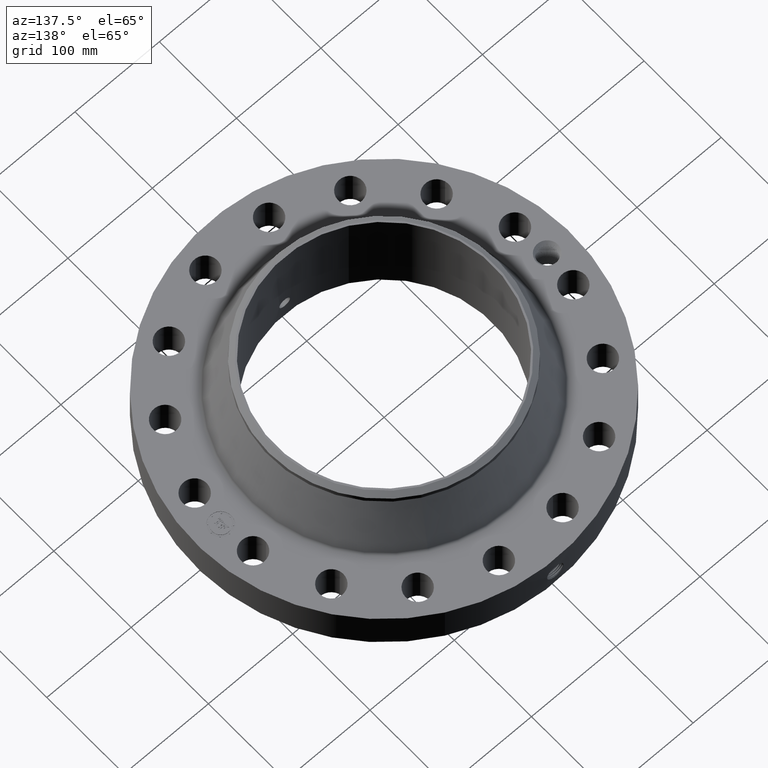
[diagram: clean part render]
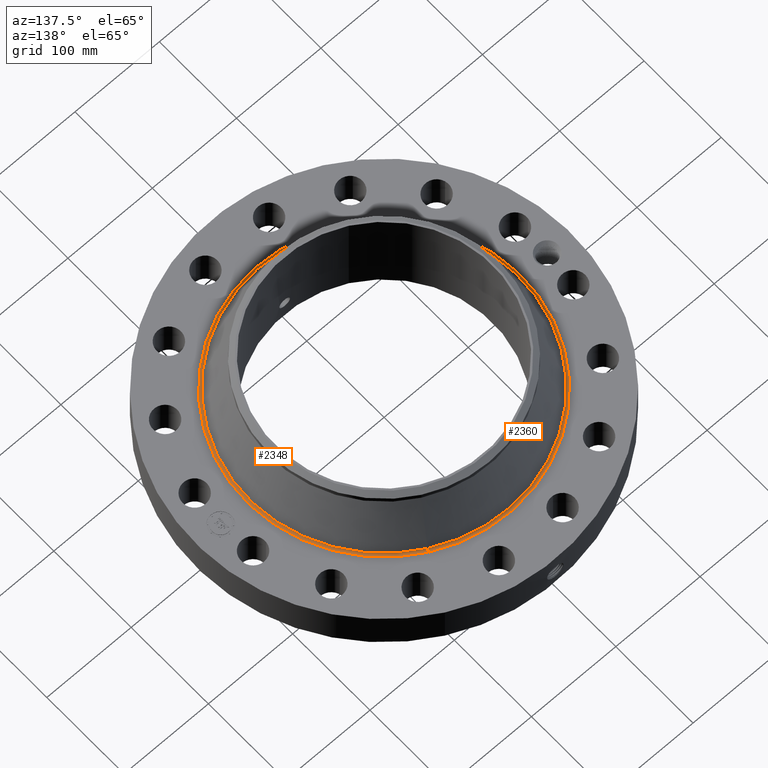
[diagram: same view with one multi-face feature highlighted, each face labeled with its STEP entity id]
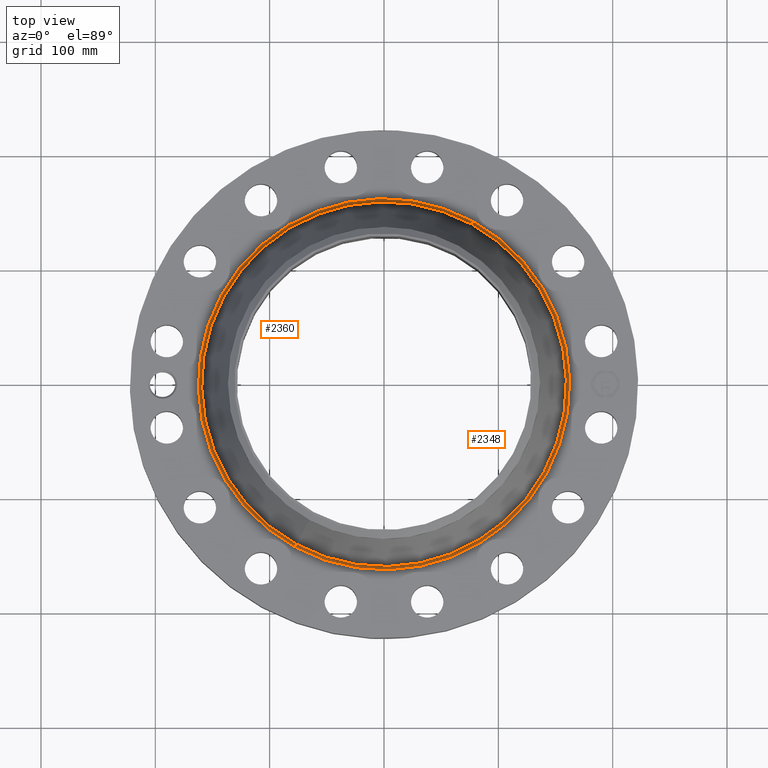
[diagram: same view with one multi-face feature highlighted, each face labeled with its STEP entity id]
A machine part, auxiliary view. The highlighted faces form ONE feature: a constant-radius fillet chain: 2 tangent blend faces with common blend radius 3.048 mm. The faces share edges in the B-rep.
A second angle (top view) of the same feature is appended — it is thin or edge-on in the first view.
Their STEP definitions:
[1] entity #2360 (Torus):
#707=AXIS2_PLACEMENT_3D('Circle Axis2P3D',#705,#706,$) ;
#2321=AXIS2_PLACEMENT_3D('Torus Axis2P3D',#2318,#2319,#2320) ;
#2325=AXIS2_PLACEMENT_3D('Circle Axis2P3D',#2323,#2324,$) ;
#2339=AXIS2_PLACEMENT_3D('Circle Axis2P3D',#2337,#2338,$) ;
#2351=AXIS2_PLACEMENT_3D('Circle Axis2P3D',#2349,#2350,$) ;
#705=CARTESIAN_POINT('Axis2P3D Location',(0.,0.,1.94000000001)) ;
#709=CARTESIAN_POINT('Vertex',(-3.06407052467,-5.60874347386,1.94000000001)) ;
#711=CARTESIAN_POINT('Vertex',(3.06407052467,5.60874347386,1.94000000001)) ;
#2318=CARTESIAN_POINT('Axis2P3D Location',(0.,0.,2.06000000001)) ;
#2323=CARTESIAN_POINT('Axis2P3D Location',(3.06407052467,5.60874347386,2.06000000001)) ;
#2327=CARTESIAN_POINT('Vertex',(3.01068236931,5.51101711099,2.01528688262)) ;
#2334=CARTESIAN_POINT('Vertex',(-3.01068236931,-5.51101711099,2.01528688262)) ;
#2337=CARTESIAN_POINT('Axis2P3D Location',(-3.06407052467,-5.60874347386,2.06000000001)) ;
#2349=CARTESIAN_POINT('Axis2P3D Location',(0.,0.,2.01528688262)) ;
#706=DIRECTION('Axis2P3D Direction',(0.,0.,-0.0393700787402)) ;
#2319=DIRECTION('Axis2P3D Direction',(0.,0.,-0.0393700787402)) ;
#2320=DIRECTION('Axis2P3D XDirection',(-0.0188750212049,-0.0345504945626,0.)) ;
#2324=DIRECTION('Axis2P3D Direction',(-0.0345504945626,0.0188750212049,0.)) ;
#2338=DIRECTION('Axis2P3D Direction',(0.0345504945626,-0.0188750212049,0.)) ;
#2350=DIRECTION('Axis2P3D Direction',(0.,0.,-0.0393700787402)) ;
#2355=ORIENTED_EDGE('',*,*,#713,.F.) ;
#2356=ORIENTED_EDGE('',*,*,#2341,.T.) ;
#2357=ORIENTED_EDGE('',*,*,#2353,.T.) ;
#2358=ORIENTED_EDGE('',*,*,#2329,.F.) ;
#2360=ADVANCED_FACE('PartBody',(#2359),#2322,.F.) ;
#708=CIRCLE('generated circle',#707,6.39112912839) ;
#2326=CIRCLE('generated circle',#2325,0.12) ;
#2340=CIRCLE('generated circle',#2339,0.12) ;
#2352=CIRCLE('generated circle',#2351,6.27977053136) ;
#2322=TOROIDAL_SURFACE('homeo Torus',#2321,6.39112912839,0.12) ;
#713=EDGE_CURVE('',#710,#712,#708,.T.) ;
#2329=EDGE_CURVE('',#712,#2328,#2326,.T.) ;
#2341=EDGE_CURVE('',#710,#2335,#2340,.T.) ;
#2353=EDGE_CURVE('',#2335,#2328,#2352,.T.) ;
#2354=EDGE_LOOP('',(#2355,#2356,#2357,#2358)) ;
#2359=FACE_OUTER_BOUND('',#2354,.T.) ;
#710=VERTEX_POINT('',#709) ;
#712=VERTEX_POINT('',#711) ;
#2328=VERTEX_POINT('',#2327) ;
#2335=VERTEX_POINT('',#2334) ;
[2] entity #2348 (Torus):
#716=AXIS2_PLACEMENT_3D('Circle Axis2P3D',#714,#715,$) ;
#2321=AXIS2_PLACEMENT_3D('Torus Axis2P3D',#2318,#2319,#2320) ;
#2325=AXIS2_PLACEMENT_3D('Circle Axis2P3D',#2323,#2324,$) ;
#2332=AXIS2_PLACEMENT_3D('Circle Axis2P3D',#2330,#2331,$) ;
#2339=AXIS2_PLACEMENT_3D('Circle Axis2P3D',#2337,#2338,$) ;
#709=CARTESIAN_POINT('Vertex',(-3.06407052467,-5.60874347386,1.94000000001)) ;
#711=CARTESIAN_POINT('Vertex',(3.06407052467,5.60874347386,1.94000000001)) ;
#714=CARTESIAN_POINT('Axis2P3D Location',(0.,0.,1.94000000001)) ;
#2318=CARTESIAN_POINT('Axis2P3D Location',(0.,0.,2.06000000001)) ;
#2323=CARTESIAN_POINT('Axis2P3D Location',(3.06407052467,5.60874347386,2.06000000001)) ;
#2327=CARTESIAN_POINT('Vertex',(3.01068236931,5.51101711099,2.01528688262)) ;
#2330=CARTESIAN_POINT('Axis2P3D Location',(0.,0.,2.01528688262)) ;
#2334=CARTESIAN_POINT('Vertex',(-3.01068236931,-5.51101711099,2.01528688262)) ;
#2337=CARTESIAN_POINT('Axis2P3D Location',(-3.06407052467,-5.60874347386,2.06000000001)) ;
#715=DIRECTION('Axis2P3D Direction',(0.,0.,-0.0393700787402)) ;
#2319=DIRECTION('Axis2P3D Direction',(0.,0.,-0.0393700787402)) ;
#2320=DIRECTION('Axis2P3D XDirection',(-0.0188750212049,-0.0345504945626,0.)) ;
#2324=DIRECTION('Axis2P3D Direction',(-0.0345504945626,0.0188750212049,0.)) ;
#2331=DIRECTION('Axis2P3D Direction',(0.,0.,-0.0393700787402)) ;
#2338=DIRECTION('Axis2P3D Direction',(0.0345504945626,-0.0188750212049,0.)) ;
#2343=ORIENTED_EDGE('',*,*,#718,.F.) ;
#2344=ORIENTED_EDGE('',*,*,#2329,.T.) ;
#2345=ORIENTED_EDGE('',*,*,#2336,.T.) ;
#2346=ORIENTED_EDGE('',*,*,#2341,.F.) ;
#2348=ADVANCED_FACE('PartBody',(#2347),#2322,.F.) ;
#717=CIRCLE('generated circle',#716,6.39112912839) ;
#2326=CIRCLE('generated circle',#2325,0.12) ;
#2333=CIRCLE('generated circle',#2332,6.27977053136) ;
#2340=CIRCLE('generated circle',#2339,0.12) ;
#2322=TOROIDAL_SURFACE('homeo Torus',#2321,6.39112912839,0.12) ;
#718=EDGE_CURVE('',#712,#710,#717,.T.) ;
#2329=EDGE_CURVE('',#712,#2328,#2326,.T.) ;
#2336=EDGE_CURVE('',#2328,#2335,#2333,.T.) ;
#2341=EDGE_CURVE('',#710,#2335,#2340,.T.) ;
#2342=EDGE_LOOP('',(#2343,#2344,#2345,#2346)) ;
#2347=FACE_OUTER_BOUND('',#2342,.T.) ;
#710=VERTEX_POINT('',#709) ;
#712=VERTEX_POINT('',#711) ;
#2328=VERTEX_POINT('',#2327) ;
#2335=VERTEX_POINT('',#2334) ;